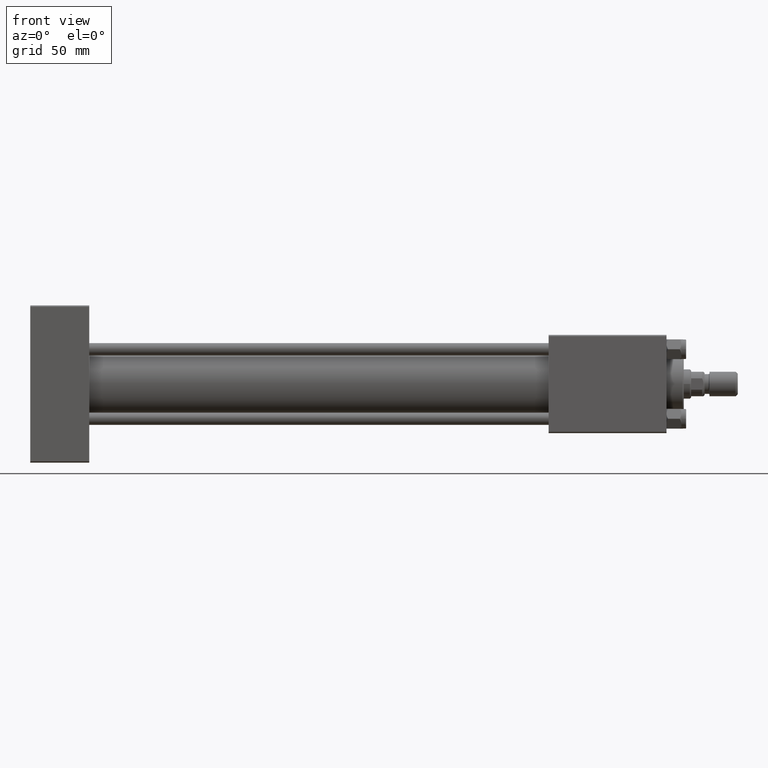
[diagram: clean part render]
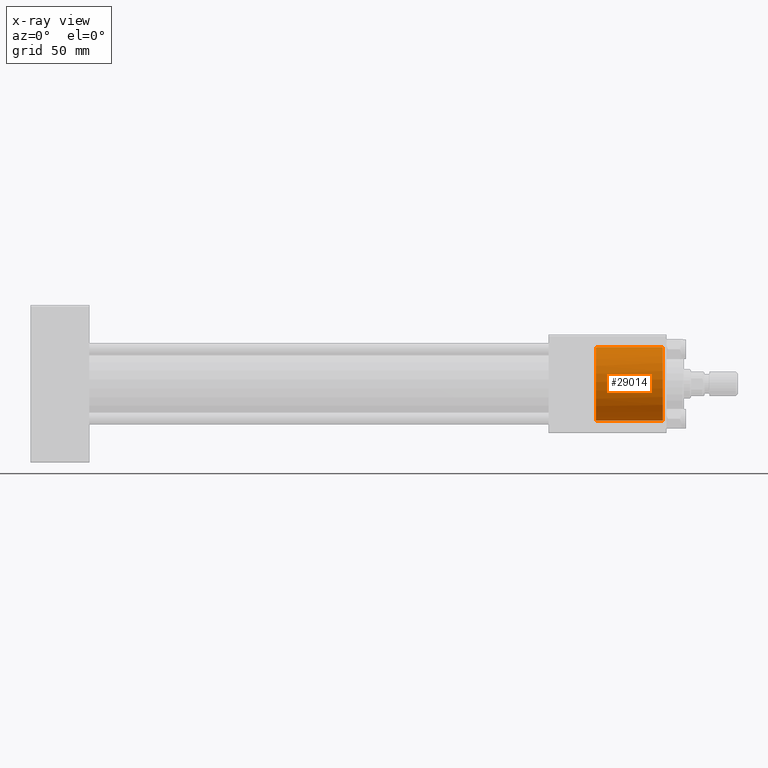
[diagram: x-ray — body ghosted, one internal face saturated and labeled with its STEP entity id]
A machine part, front view, then the same camera in x-ray: the body is ghosted and one INTERNAL B-rep face — a face not visible from any outside direction — is saturated and labeled: STEP entity #29014.
In plain terms, the highlighted cylindrical surface (partial cylindrical patch) has radius 15 mm, axis along (1, 0, 0).
Its self-contained STEP definition (entity closure, byte-faithful):
#1462 = AXIS2_PLACEMENT_3D ( 'NONE', #9722, #1595, #40805 ) ;
#1595 = DIRECTION ( 'NONE',  ( 1.000000000000000000, -0.000000000000000000, -0.000000000000000000 ) ) ;
#2026 = CARTESIAN_POINT ( 'NONE',  ( 230.4862710624645672, -1.281108574216742291, 14.95816952780141662 ) ) ;
#3448 = LINE ( 'NONE', #30179, #10108 ) ;
#3507 = CARTESIAN_POINT ( 'NONE',  ( 257.5000000000000000, 0.000000000000000000, 0.000000000000000000 ) ) ;
#7346 = CARTESIAN_POINT ( 'NONE',  ( 257.5000000000000000, 0.000000000000000000, -15.00000000000000000 ) ) ;
#9551 = EDGE_LOOP ( 'NONE', ( #42706, #14515, #37904, #10052, #27947 ) ) ;
#9722 = CARTESIAN_POINT ( 'NONE',  ( 230.3000000000000114, 0.000000000000000000, 0.000000000000000000 ) ) ;
#9939 = DIRECTION ( 'NONE',  ( 1.000000000000000000, 0.000000000000000000, 0.000000000000000000 ) ) ;
#10052 = ORIENTED_EDGE ( 'NONE', *, *, #46868, .F. ) ;
#10108 = VECTOR ( 'NONE', #49563, 1000.000000000000000 ) ;
#10941 = VERTEX_POINT ( 'NONE', #16711 ) ;
#11243 = DIRECTION ( 'NONE',  ( 1.000000000000000000, 0.000000000000000000, 0.000000000000000000 ) ) ;
#11374 = EDGE_CURVE ( 'NONE', #44546, #45629, #25202, .T. ) ;
#11628 = CIRCLE ( 'NONE', #42539, 15.00000000000000000 ) ;
#11869 = VERTEX_POINT ( 'NONE', #42718 ) ;
#13447 = EDGE_CURVE ( 'NONE', #45629, #30582, #11628, .T. ) ;
#13554 = CYLINDRICAL_SURFACE ( 'NONE', #1462, 15.00000000000000000 ) ;
#14515 = ORIENTED_EDGE ( 'NONE', *, *, #11374, .T. ) ;
#15800 = EDGE_CURVE ( 'NONE', #11869, #10941, #22958, .T. ) ;
#16711 = CARTESIAN_POINT ( 'NONE',  ( 230.3000000000000114, 0.000000000000000000, -15.00000000000000000 ) ) ;
#17302 = CARTESIAN_POINT ( 'NONE',  ( 230.5800000000000693, -0.6482402319132112289, 15.00000000000000000 ) ) ;
#17789 = CARTESIAN_POINT ( 'NONE',  ( 230.3000000000000114, -1.899052395275223182, 14.87930105885351928 ) ) ;
#18645 = CARTESIAN_POINT ( 'NONE',  ( 230.3000000000000114, 0.000000000000000000, 0.000000000000000000 ) ) ;
#19031 = DIRECTION ( 'NONE',  ( 0.000000000000000000, 0.000000000000000000, 1.000000000000000000 ) ) ;
#19562 = CARTESIAN_POINT ( 'NONE',  ( 257.5000000000000000, 1.836970198721029589E-15, 15.00000000000000000 ) ) ;
#22774 = B_SPLINE_CURVE_WITH_KNOTS ( 'NONE', 3,
 ( #17789, #2026, #17302, #45314 ),
 .UNSPECIFIED., .F., .F.,
 ( 4, 4 ),
 ( 0.000000000000000000, 0.001923267627920621304 ),
 .UNSPECIFIED. ) ;
#22958 = CIRCLE ( 'NONE', #45737, 15.00000000000000000 ) ;
#25202 = LINE ( 'NONE', #36686, #37513 ) ;
#27947 = ORIENTED_EDGE ( 'NONE', *, *, #15800, .F. ) ;
#28256 = CARTESIAN_POINT ( 'NONE',  ( 230.5800000000000409, 1.837042764456335862E-15, 15.00000000000000000 ) ) ;
#29014 = ADVANCED_FACE ( 'NONE', ( #32906 ), #13554, .F. ) ;
#30179 = CARTESIAN_POINT ( 'NONE',  ( 230.3000000000000114, 0.000000000000000000, -15.00000000000000000 ) ) ;
#30582 = VERTEX_POINT ( 'NONE', #7346 ) ;
#32906 = FACE_OUTER_BOUND ( 'NONE', #9551, .T. ) ;
#36686 = CARTESIAN_POINT ( 'NONE',  ( 230.3000000000000114, 1.836970198721029589E-15, 15.00000000000000000 ) ) ;
#37215 = EDGE_CURVE ( 'NONE', #11869, #44546, #22774, .T. ) ;
#37513 = VECTOR ( 'NONE', #48915, 1000.000000000000000 ) ;
#37904 = ORIENTED_EDGE ( 'NONE', *, *, #13447, .T. ) ;
#40805 = DIRECTION ( 'NONE',  ( 0.000000000000000000, 0.000000000000000000, -1.000000000000000000 ) ) ;
#42539 = AXIS2_PLACEMENT_3D ( 'NONE', #3507, #9939, #19031 ) ;
#42706 = ORIENTED_EDGE ( 'NONE', *, *, #37215, .T. ) ;
#42718 = CARTESIAN_POINT ( 'NONE',  ( 230.3000000000000114, -1.899052395275223182, 14.87930105885351928 ) ) ;
#44546 = VERTEX_POINT ( 'NONE', #28256 ) ;
#45314 = CARTESIAN_POINT ( 'NONE',  ( 230.5800000000000409, 1.837042764456335862E-15, 15.00000000000000000 ) ) ;
#45629 = VERTEX_POINT ( 'NONE', #19562 ) ;
#45737 = AXIS2_PLACEMENT_3D ( 'NONE', #18645, #11243, #46408 ) ;
#46408 = DIRECTION ( 'NONE',  ( 0.000000000000000000, 0.000000000000000000, -1.000000000000000000 ) ) ;
#46868 = EDGE_CURVE ( 'NONE', #10941, #30582, #3448, .T. ) ;
#48915 = DIRECTION ( 'NONE',  ( 1.000000000000000000, -0.000000000000000000, -0.000000000000000000 ) ) ;
#49563 = DIRECTION ( 'NONE',  ( 1.000000000000000000, -0.000000000000000000, -0.000000000000000000 ) ) ;